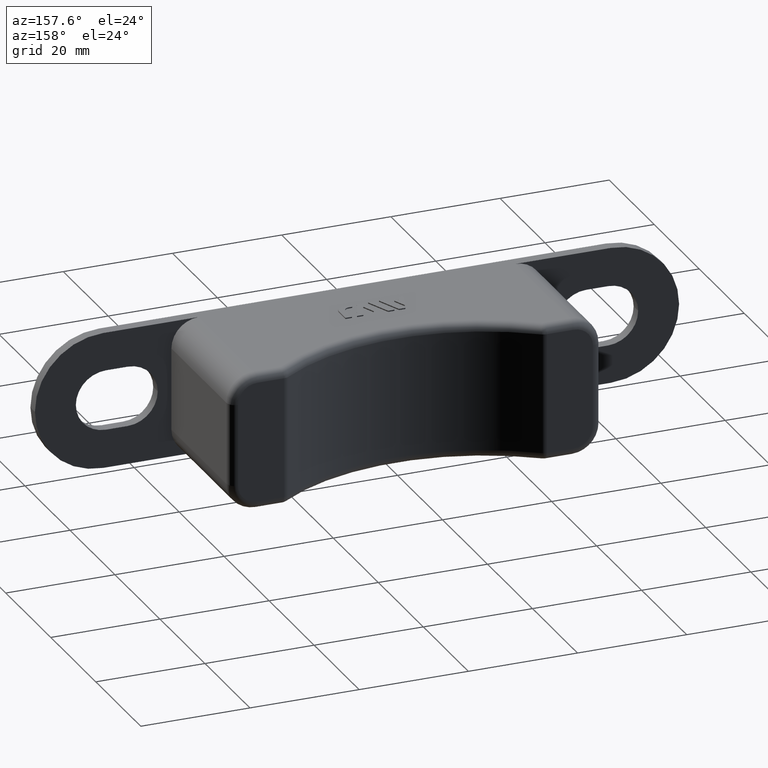
[diagram: clean part render]
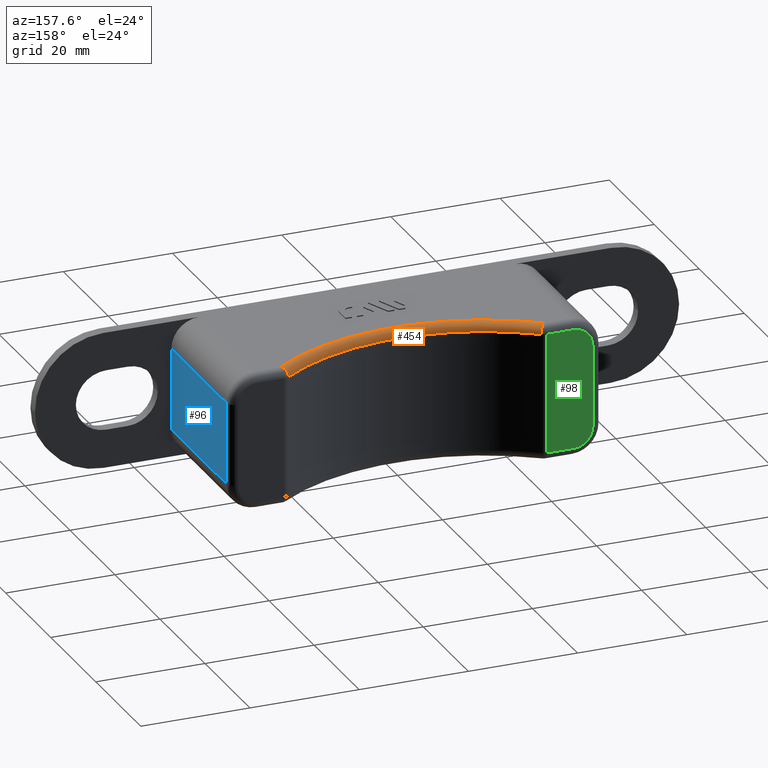
[diagram: same view with three faces highlighted in distinct colors, each labeled with its STEP entity id]
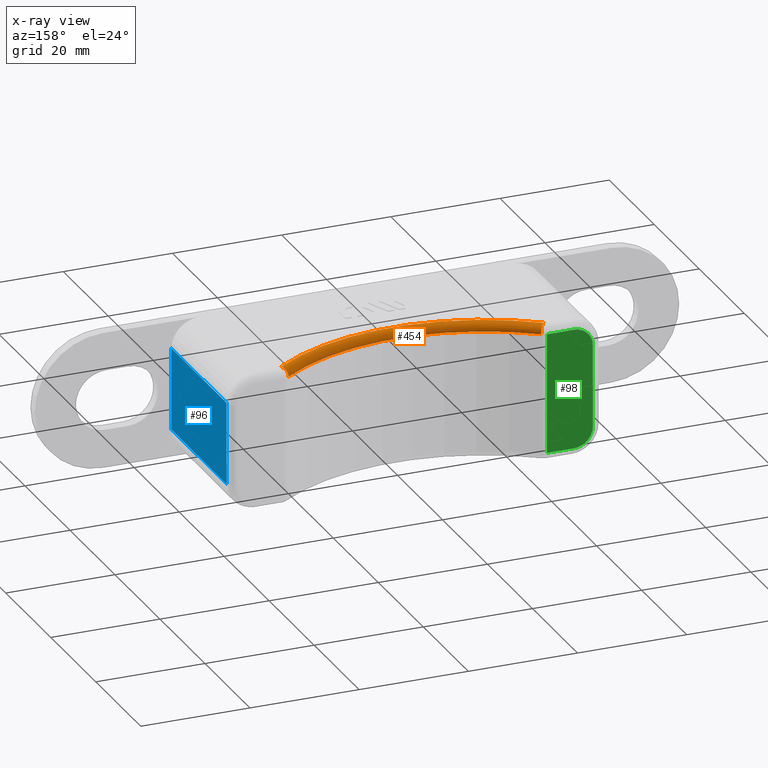
[diagram: x-ray of the same camera — body ghosted, the three highlighted faces saturated]
A machine part, auxiliary view with three faces highlighted in distinct colors.
The next image is the same camera in x-ray (body ghosted, the three faces saturated) — at least one of them is partly hidden behind the body in this view.
Their STEP definitions:

[orange] entity #454 — the highlighted toroidal blend (fillet) surface has major radius 40.15 mm and minor (blend) radius 1.5 mm.
#454 = ADVANCED_FACE( '', ( #1304 ), #1305, .T. );
#1304 = FACE_OUTER_BOUND( '', #2186, .T. );
#1305 = TOROIDAL_SURFACE( '', #2187, 40.1500000000000, 1.50000000000000 );
#2186 = EDGE_LOOP( '', ( #5342, #5343, #5344, #5345 ) );
#2187 = AXIS2_PLACEMENT_3D( '', #5346, #5347, #5348 );
#5342 = ORIENTED_EDGE( '', *, *, #6613, .T. );
#5343 = ORIENTED_EDGE( '', *, *, #5987, .F. );
#5344 = ORIENTED_EDGE( '', *, *, #6617, .F. );
#5345 = ORIENTED_EDGE( '', *, *, #5595, .F. );
#5346 = CARTESIAN_POINT( '', ( 0.000000000000000, 58.6500000000000, 11.0000000000000 ) );
#5347 = DIRECTION( '', ( 0.000000000000000, 0.000000000000000, -1.00000000000000 ) );
#5348 = DIRECTION( '', ( -1.00000000000000, 0.000000000000000, 0.000000000000000 ) );
#5595 = EDGE_CURVE( '', #6654, #6655, #6656, .T. );
#5987 = EDGE_CURVE( '', #7411, #7413, #7414, .F. );
#6613 = EDGE_CURVE( '', #6654, #7413, #8353, .F. );
#6617 = EDGE_CURVE( '', #6655, #7411, #8357, .T. );
#6654 = VERTEX_POINT( '', #8405 );
#6655 = VERTEX_POINT( '', #8406 );
#6656 = CIRCLE( '', #8407, 40.1500000000000 );
#7411 = VERTEX_POINT( '', #9507 );
#7413 = VERTEX_POINT( '', #9510 );
#7414 = CIRCLE( '', #9511, 38.6500000000000 );
#8353 = CIRCLE( '', #10931, 1.50000000000000 );
#8357 = CIRCLE( '', #10935, 1.50000000000000 );
#8405 = CARTESIAN_POINT( '', ( 24.0499480248919, 26.5000000000000, 12.5000000000000 ) );
#8406 = CARTESIAN_POINT( '', ( -24.0499480248919, 26.5000000000000, 12.5000000000000 ) );
#8407 = AXIS2_PLACEMENT_3D( '', #10961, #10962, #10963 );
#9507 = CARTESIAN_POINT( '', ( -23.1514443626917, 27.7011207970112, 11.0000000000000 ) );
#9510 = CARTESIAN_POINT( '', ( 23.1514443626917, 27.7011207970112, 11.0000000000000 ) );
#9511 = AXIS2_PLACEMENT_3D( '', #11445, #11446, #11447 );
#10931 = AXIS2_PLACEMENT_3D( '', #12361, #12362, #12363 );
#10935 = AXIS2_PLACEMENT_3D( '', #12373, #12374, #12375 );
#10961 = CARTESIAN_POINT( '', ( 0.000000000000000, 58.6500000000000, 12.5000000000000 ) );
#10962 = DIRECTION( '', ( 0.000000000000000, 0.000000000000000, -1.00000000000000 ) );
#10963 = DIRECTION( '', ( -1.00000000000000, 0.000000000000000, 0.000000000000000 ) );
#11445 = CARTESIAN_POINT( '', ( 0.000000000000000, 58.6500000000000, 11.0000000000000 ) );
#11446 = DIRECTION( '', ( 0.000000000000000, 0.000000000000000, -1.00000000000000 ) );
#11447 = DIRECTION( '', ( -1.00000000000000, 0.000000000000000, 0.000000000000000 ) );
#12361 = CARTESIAN_POINT( '', ( 24.0499480248919, 26.5000000000000, 11.0000000000000 ) );
#12362 = DIRECTION( '', ( 0.800747198007471, 0.599002441466797, 2.77094292634633E-015 ) );
#12363 = DIRECTION( '', ( -0.599002441466797, 0.800747198007471, 0.000000000000000 ) );
#12373 = CARTESIAN_POINT( '', ( -24.0499480248919, 26.5000000000000, 11.0000000000000 ) );
#12374 = DIRECTION( '', ( -0.800747198007472, 0.599002441466796, 0.000000000000000 ) );
#12375 = DIRECTION( '', ( -0.599002441466796, -0.800747198007472, 0.000000000000000 ) );

[blue] entity #96 — the highlighted planar face has unit normal (1, -0, 0).
#96 = ADVANCED_FACE( '', ( #587 ), #588, .T. );
#587 = FACE_OUTER_BOUND( '', #1469, .T. );
#588 = PLANE( '', #1470 );
#1469 = EDGE_LOOP( '', ( #2738, #2739, #2740, #2741 ) );
#1470 = AXIS2_PLACEMENT_3D( '', #2742, #2743, #2744 );
#2738 = ORIENTED_EDGE( '', *, *, #5969, .T. );
#2739 = ORIENTED_EDGE( '', *, *, #5970, .T. );
#2740 = ORIENTED_EDGE( '', *, *, #5971, .T. );
#2741 = ORIENTED_EDGE( '', *, *, #5972, .F. );
#2742 = CARTESIAN_POINT( '', ( 34.0000000000000, 2.00000000000000, -12.5000000000000 ) );
#2743 = DIRECTION( '', ( 1.00000000000000, -6.93889390390723E-017, 0.000000000000000 ) );
#2744 = DIRECTION( '', ( -6.93889390390723E-017, -1.00000000000000, 0.000000000000000 ) );
#5969 = EDGE_CURVE( '', #7381, #7382, #7383, .T. );
#5970 = EDGE_CURVE( '', #7382, #7384, #7385, .T. );
#5971 = EDGE_CURVE( '', #7384, #7386, #7387, .F. );
#5972 = EDGE_CURVE( '', #7381, #7386, #7388, .T. );
#7381 = VERTEX_POINT( '', #9469 );
#7382 = VERTEX_POINT( '', #9470 );
#7383 = LINE( '', #9471, #9472 );
#7384 = VERTEX_POINT( '', #9473 );
#7385 = LINE( '', #9474, #9475 );
#7386 = VERTEX_POINT( '', #9476 );
#7387 = LINE( '', #9477, #9478 );
#7388 = LINE( '', #9479, #9480 );
#9469 = CARTESIAN_POINT( '', ( 34.0000000000000, 2.00000000000000, -7.50000000000000 ) );
#9470 = CARTESIAN_POINT( '', ( 34.0000000000000, 26.5000000000000, -7.50000000000000 ) );
#9471 = CARTESIAN_POINT( '', ( 34.0000000000000, 2.00000000000000, -7.50000000000000 ) );
#9472 = VECTOR( '', #11409, 1000.00000000000 );
#9473 = CARTESIAN_POINT( '', ( 34.0000000000000, 26.5000000000000, 7.50000000000000 ) );
#9474 = CARTESIAN_POINT( '', ( 34.0000000000000, 26.5000000000000, -12.5000000000000 ) );
#9475 = VECTOR( '', #11410, 1000.00000000000 );
#9476 = CARTESIAN_POINT( '', ( 34.0000000000000, 2.00000000000000, 7.50000000000000 ) );
#9477 = CARTESIAN_POINT( '', ( 34.0000000000000, 2.00000000000000, 7.50000000000000 ) );
#9478 = VECTOR( '', #11411, 1000.00000000000 );
#9479 = CARTESIAN_POINT( '', ( 34.0000000000000, 2.00000000000000, -12.5000000000000 ) );
#9480 = VECTOR( '', #11412, 1000.00000000000 );
#11409 = DIRECTION( '', ( 6.93889390390723E-017, 1.00000000000000, 0.000000000000000 ) );
#11410 = DIRECTION( '', ( 0.000000000000000, 0.000000000000000, 1.00000000000000 ) );
#11411 = DIRECTION( '', ( 6.93889390390723E-017, 1.00000000000000, 0.000000000000000 ) );
#11412 = DIRECTION( '', ( 0.000000000000000, 0.000000000000000, 1.00000000000000 ) );

[green] entity #98 — the highlighted planar face has unit normal (0, 1, 0).
#98 = ADVANCED_FACE( '', ( #592 ), #593, .T. );
#592 = FACE_OUTER_BOUND( '', #1474, .T. );
#593 = PLANE( '', #1475 );
#1474 = EDGE_LOOP( '', ( #2761, #2762, #2763, #2764, #2765, #2766 ) );
#1475 = AXIS2_PLACEMENT_3D( '', #2767, #2768, #2769 );
#2761 = ORIENTED_EDGE( '', *, *, #5936, .T. );
#2762 = ORIENTED_EDGE( '', *, *, #5933, .T. );
#2763 = ORIENTED_EDGE( '', *, *, #5928, .T. );
#2764 = ORIENTED_EDGE( '', *, *, #5938, .T. );
#2765 = ORIENTED_EDGE( '', *, *, #5983, .T. );
#2766 = ORIENTED_EDGE( '', *, *, #5984, .T. );
#2767 = CARTESIAN_POINT( '', ( -23.5457002444183, 28.0000000000000, -12.5000000000000 ) );
#2768 = DIRECTION( '', ( 0.000000000000000, 1.00000000000000, 0.000000000000000 ) );
#2769 = DIRECTION( '', ( 1.00000000000000, 0.000000000000000, 0.000000000000000 ) );
#5928 = EDGE_CURVE( '', #7312, #7310, #7313, .T. );
#5933 = EDGE_CURVE( '', #7317, #7312, #7321, .T. );
#5936 = EDGE_CURVE( '', #7322, #7317, #7326, .T. );
#5938 = EDGE_CURVE( '', #7310, #7327, #7329, .T. );
#5983 = EDGE_CURVE( '', #7327, #7406, #7407, .F. );
#5984 = EDGE_CURVE( '', #7406, #7322, #7408, .F. );
#7310 = VERTEX_POINT( '', #9376 );
#7312 = VERTEX_POINT( '', #9378 );
#7313 = LINE( '', #9379, #9380 );
#7317 = VERTEX_POINT( '', #9385 );
#7321 = CIRCLE( '', #9389, 3.50000000000000 );
#7322 = VERTEX_POINT( '', #9390 );
#7326 = LINE( '', #9395, #9396 );
#7327 = VERTEX_POINT( '', #9397 );
#7329 = CIRCLE( '', #9399, 3.50000000000000 );
#7406 = VERTEX_POINT( '', #9500 );
#7407 = LINE( '', #9501, #9502 );
#7408 = LINE( '', #9503, #9504 );
#9376 = CARTESIAN_POINT( '', ( -32.5000000000000, 28.0000000000000, 7.50000000000000 ) );
#9378 = CARTESIAN_POINT( '', ( -32.5000000000000, 28.0000000000000, -7.50000000000000 ) );
#9379 = CARTESIAN_POINT( '', ( -32.5000000000000, 28.0000000000000, -12.5000000000000 ) );
#9380 = VECTOR( '', #11330, 1000.00000000000 );
#9385 = CARTESIAN_POINT( '', ( -29.0000000000000, 28.0000000000000, -11.0000000000000 ) );
#9389 = AXIS2_PLACEMENT_3D( '', #11341, #11342, #11343 );
#9390 = CARTESIAN_POINT( '', ( -24.0499480248919, 28.0000000000000, -11.0000000000000 ) );
#9395 = CARTESIAN_POINT( '', ( -23.5457002444183, 28.0000000000000, -11.0000000000000 ) );
#9396 = VECTOR( '', #11348, 1000.00000000000 );
#9397 = CARTESIAN_POINT( '', ( -29.0000000000000, 28.0000000000000, 11.0000000000000 ) );
#9399 = AXIS2_PLACEMENT_3D( '', #11352, #11353, #11354 );
#9500 = CARTESIAN_POINT( '', ( -24.0499480248919, 28.0000000000000, 11.0000000000000 ) );
#9501 = CARTESIAN_POINT( '', ( -23.5457002444183, 28.0000000000000, 11.0000000000000 ) );
#9502 = VECTOR( '', #11439, 1000.00000000000 );
#9503 = CARTESIAN_POINT( '', ( -24.0499480248919, 28.0000000000000, -12.5000000000000 ) );
#9504 = VECTOR( '', #11440, 1000.00000000000 );
#11330 = DIRECTION( '', ( 0.000000000000000, 0.000000000000000, 1.00000000000000 ) );
#11341 = CARTESIAN_POINT( '', ( -29.0000000000000, 28.0000000000000, -7.50000000000000 ) );
#11342 = DIRECTION( '', ( 0.000000000000000, 1.00000000000000, 0.000000000000000 ) );
#11343 = DIRECTION( '', ( 0.000000000000000, 0.000000000000000, 1.00000000000000 ) );
#11348 = DIRECTION( '', ( -1.00000000000000, 0.000000000000000, 0.000000000000000 ) );
#11352 = CARTESIAN_POINT( '', ( -29.0000000000000, 28.0000000000000, 7.50000000000000 ) );
#11353 = DIRECTION( '', ( 0.000000000000000, 1.00000000000000, 0.000000000000000 ) );
#11354 = DIRECTION( '', ( 0.000000000000000, 0.000000000000000, 1.00000000000000 ) );
#11439 = DIRECTION( '', ( -1.00000000000000, 0.000000000000000, 0.000000000000000 ) );
#11440 = DIRECTION( '', ( 0.000000000000000, 0.000000000000000, 1.00000000000000 ) );